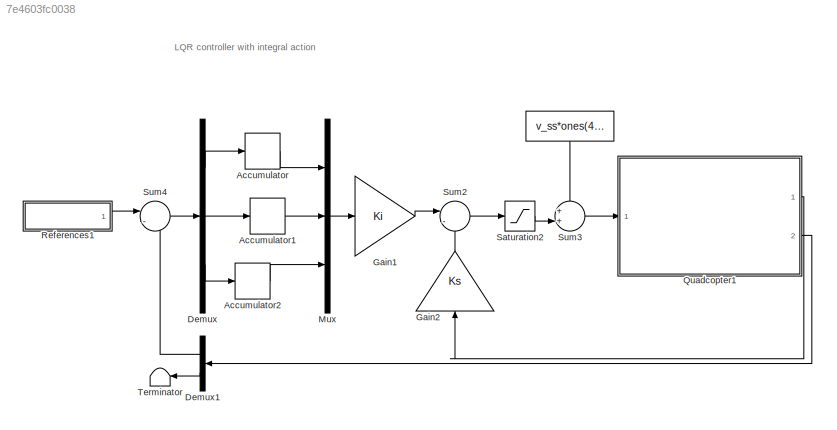
MODEL slx_7e4603fc0038
KIND model
CONFIG AbsTol = auto
CONFIG EnableMultiTasking = off
CONFIG FixedStep = auto
CONFIG MaxStep = auto
CONFIG MinStep = auto
CONFIG RelTol = 1e-3
CONFIG SampleTimeConstraint = Unconstrained
CONFIG Solver = VariableStepAuto
CONFIG SolverName = VariableStepAuto
CONFIG StartTime = 0.0
CONFIG StopTime = Tmax
BLOCK [Constant]  
  SampleTime = Ts
  Value = v_ss*ones(4,1)
BLOCK [DiscreteIntegrator] Accumulator
  ICPrevOutput = DiscIntNeverNeededParam
  ICPrevScaledInput = DiscIntNeverNeededParam
  InitialConditionSetting = Auto
  IntegratorMethod = Accumulation: Forward Euler
  Ports = [1, 1]
  SampleTime = Ts
BLOCK [DiscreteIntegrator] Accumulator1
  ICPrevOutput = DiscIntNeverNeededParam
  ICPrevScaledInput = DiscIntNeverNeededParam
  InitialConditionSetting = Auto
  IntegratorMethod = Accumulation: Forward Euler
  Ports = [1, 1]
  SampleTime = Ts
BLOCK [DiscreteIntegrator] Accumulator2
  ICPrevOutput = DiscIntNeverNeededParam
  ICPrevScaledInput = DiscIntNeverNeededParam
  InitialConditionSetting = Auto
  IntegratorMethod = Accumulation: Forward Euler
  Ports = [1, 1]
  SampleTime = Ts
BLOCK [Demux] Demux
  DisplayOption = bar
  Outputs = 3
  Ports = [1, 3]
BLOCK [Demux] Demux1
  DisplayOption = bar
  Outputs = 2
  Ports = [1, 2]
BLOCK [Gain] Gain1
  Gain = Ki
  Multiplication = Matrix(K*u)
  OutDataTypeStr = Inherit: Inherit via internal rule
  ParamDataTypeStr = Inherit: Inherit via internal rule
  SaturateOnIntegerOverflow = off
BLOCK [Gain] Gain2
  Gain = Ks
  Multiplication = Matrix(K*u)
  OutDataTypeStr = Inherit: Inherit via internal rule
  ParamDataTypeStr = Inherit: Inherit via internal rule
  SaturateOnIntegerOverflow = off
BLOCK [Mux] Mux
  DisplayOption = bar
  Inputs = 3
  Ports = [3, 1]
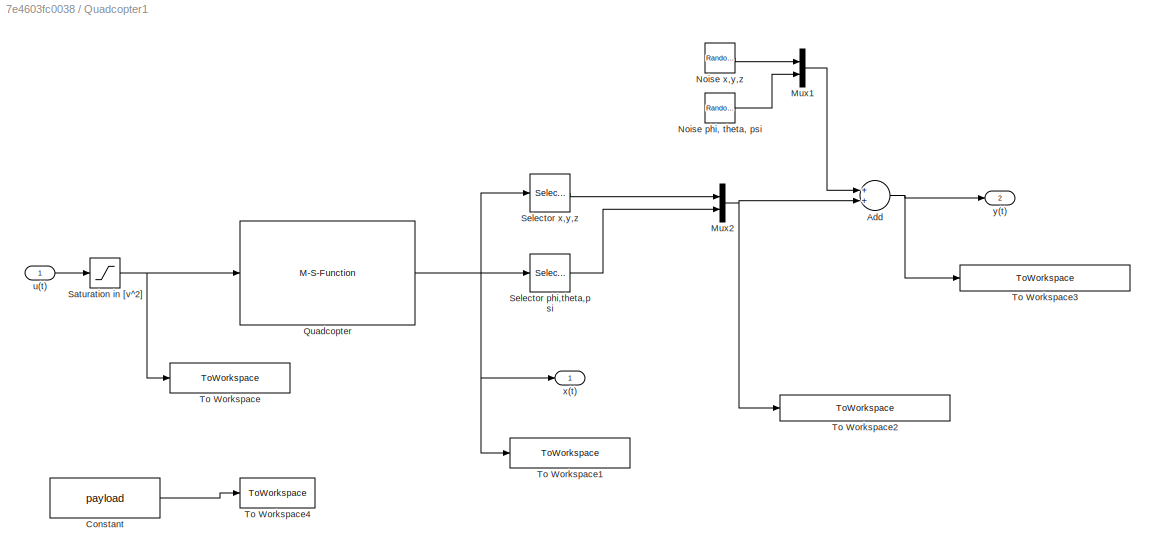
BLOCK [SubSystem] Quadcopter1
  Permissions = NoReadOrWrite
  Ports = [1, 2]
  RequestExecContextInheritance = off
BLOCK [Sum] Quadcopter1/Add
  InputSameDT = off
  OutDataTypeStr = Inherit: Inherit via internal rule
  Ports = [2, 1]
  SaturateOnIntegerOverflow = off
BLOCK [Constant] Quadcopter1/Constant
  Value = payload
BLOCK [Mux] Quadcopter1/Mux1
  DisplayOption = bar
  Inputs = 2
  Ports = [2, 1]
BLOCK [Mux] Quadcopter1/Mux2
  DisplayOption = bar
  Inputs = 2
  Ports = [2, 1]
BLOCK [RandomNumber] Quadcopter1/Noise  x,y,z
  SampleTime = 0.05
  Variance = [1 1 1]*(0.005)^2
BLOCK [RandomNumber] Quadcopter1/Noise phi, theta, psi
  SampleTime = 0.05
  Variance = [1 1 1]*(0.0087)^2
BLOCK [M-S-Function] Quadcopter1/Quadcopter
  FunctionName = quadcopter_sfunction
  Parameters = x0, payload
  Ports = [1, 1]
BLOCK [Saturate] Quadcopter1/Saturation in [v^2]
  InputPortMap = u0
  LowerLimit = 0
  Ports = [1, 1]
  UpperLimit = 100
BLOCK [Selector] Quadcopter1/Selector phi,theta,psi
  IndexOptions = Index vector (dialog)
  Indices = [7 8 9]
  OutputSizes = 1
  Ports = [1, 1]
BLOCK [Selector] Quadcopter1/Selector x,y,z
  IndexOptions = Index vector (dialog)
  Indices = [1 2 3]
  OutputSizes = 1
  Ports = [1, 1]
BLOCK [ToWorkspace] Quadcopter1/To Workspace
  MaxDataPoints = inf
  Ports = [1]
  SampleTime = -1
  SaveFormat = Structure With Time
  VariableName = inputs_quadcopter
BLOCK [ToWorkspace] Quadcopter1/To Workspace1
  MaxDataPoints = inf
  Ports = [1]
  SampleTime = -1
  SaveFormat = Structure With Time
  VariableName = states_quadcopter
BLOCK [ToWorkspace] Quadcopter1/To Workspace2
  MaxDataPoints = inf
  Ports = [1]
  SampleTime = -1
  SaveFormat = Structure With Time
  VariableName = outputs_quadcopter_nonoise
BLOCK [ToWorkspace] Quadcopter1/To Workspace3
  MaxDataPoints = inf
  Ports = [1]
  SampleTime = -1
  SaveFormat = Structure With Time
  VariableName = outputs_quadcopter_noise
BLOCK [ToWorkspace] Quadcopter1/To Workspace4
  MaxDataPoints = inf
  Ports = [1]
  SampleTime = -1
  VariableName = payload_quadcopter
BLOCK [Inport] Quadcopter1/u(t)
  IconDisplay = Port number
BLOCK [Outport] Quadcopter1/x(t)
  IconDisplay = Port number
BLOCK [Outport] Quadcopter1/y(t)
  IconDisplay = Port number
  Port = 2
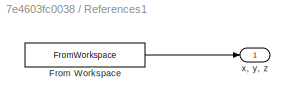
BLOCK [SubSystem] References1
  Permissions = NoReadOrWrite
  Ports = [0, 1]
  RequestExecContextInheritance = off
BLOCK [FromWorkspace] References1/From Workspace
  Interpolate = off
  OutputAfterFinalValue = Holding final value
  SampleTime = 0.1
  VariableName = references
  ZeroCross = on
BLOCK [Outport] References1/x, y, z
  IconDisplay = Port number
BLOCK [Saturate] Saturation2
  InputPortMap = u0
  LowerLimit = ones(4,1) * (- v_ss)
  Ports = [1, 1]
  UpperLimit = ones(4,1) * (100 - v_ss)
BLOCK [Sum] Sum2
  IconShape = round
  InputSameDT = off
  Inputs = |--
  OutDataTypeStr = Inherit: Inherit via internal rule
  Ports = [2, 1]
  SaturateOnIntegerOverflow = off
BLOCK [Sum] Sum3
  IconShape = round
  InputSameDT = off
  Inputs = ++|
  OutDataTypeStr = Inherit: Inherit via internal rule
  Ports = [2, 1]
  SaturateOnIntegerOverflow = off
BLOCK [Sum] Sum4
  IconShape = round
  InputSameDT = off
  Inputs = |-+
  OutDataTypeStr = Inherit: Inherit via internal rule
  Ports = [2, 1]
  SaturateOnIntegerOverflow = off
BLOCK [Terminator] Terminator
ANNOTATION (root): LQR controller with integral action
LINE  :1 -> Sum3:1
LINE Accumulator1:1 -> Mux:2
LINE Accumulator2:1 -> Mux:3
LINE Accumulator:1 -> Mux:1
LINE Demux1:1 -> Sum4:2
LINE Demux1:2 -> Terminator:1
LINE Demux:1 -> Accumulator:1
LINE Demux:2 -> Accumulator1:1
LINE Demux:3 -> Accumulator2:1
LINE Gain1:1 -> Sum2:1
LINE Gain2:1 -> Sum2:2
LINE Mux:1 -> Gain1:1
NET Quadcopter1/Add:1 -> Quadcopter1/To Workspace3:1, Quadcopter1/y(t):1
LINE Quadcopter1/Constant:1 -> Quadcopter1/To Workspace4:1
LINE Quadcopter1/Mux1:1 -> Quadcopter1/Add:1
NET Quadcopter1/Mux2:1 -> Quadcopter1/Add:2, Quadcopter1/To Workspace2:1
LINE Quadcopter1/Noise  x,y,z:1 -> Quadcopter1/Mux1:1
LINE Quadcopter1/Noise phi, theta, psi:1 -> Quadcopter1/Mux1:2
NET Quadcopter1/Quadcopter:1 -> Quadcopter1/Selector phi,theta,psi:1, Quadcopter1/Selector x,y,z:1, Quadcopter1/To Workspace1:1, Quadcopter1/x(t):1
NET Quadcopter1/Saturation in [v^2]:1 -> Quadcopter1/Quadcopter:1, Quadcopter1/To Workspace:1
LINE Quadcopter1/Selector phi,theta,psi:1 -> Quadcopter1/Mux2:2
LINE Quadcopter1/Selector x,y,z:1 -> Quadcopter1/Mux2:1
LINE Quadcopter1/u(t):1 -> Quadcopter1/Saturation in [v^2]:1
LINE Quadcopter1:1 -> Gain2:1
LINE Quadcopter1:2 -> Demux1:1
LINE References1/From Workspace:1 -> References1/x, y, z:1
LINE References1:1 -> Sum4:1
LINE Saturation2:1 -> Sum3:2
LINE Sum2:1 -> Saturation2:1
LINE Sum3:1 -> Quadcopter1:1
LINE Sum4:1 -> Demux:1
note: NET lines group one-source signal fan-out (src -> all destinations, sorted); 1:1 wires keep LINE
